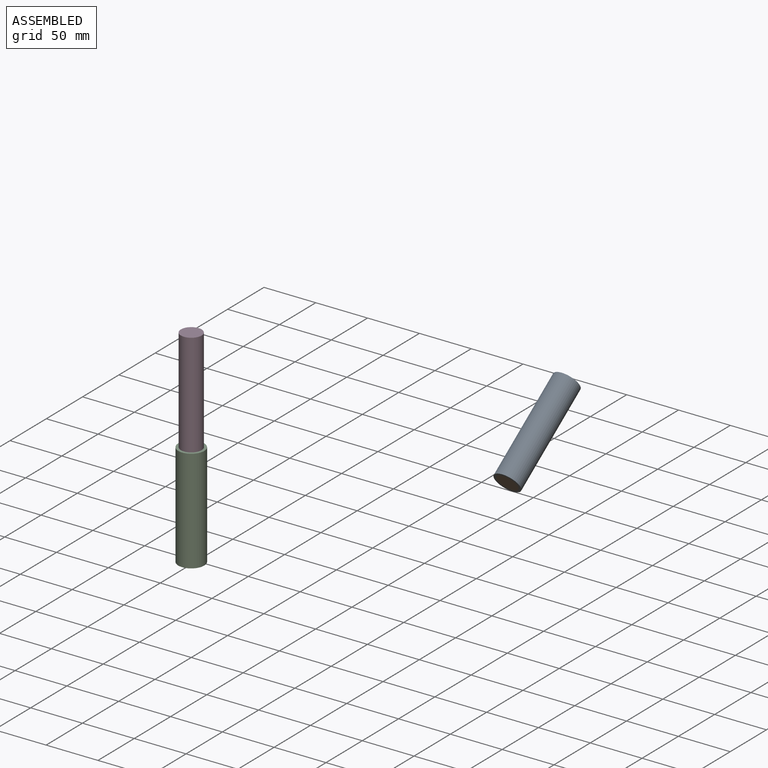
[diagram: assembled view]
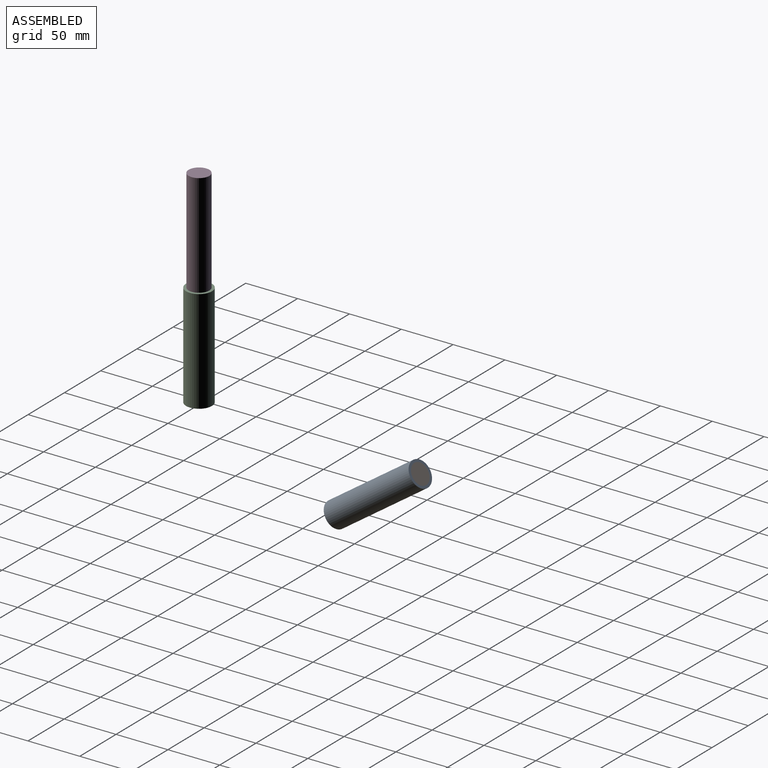
[diagram: assembled view, second angle]
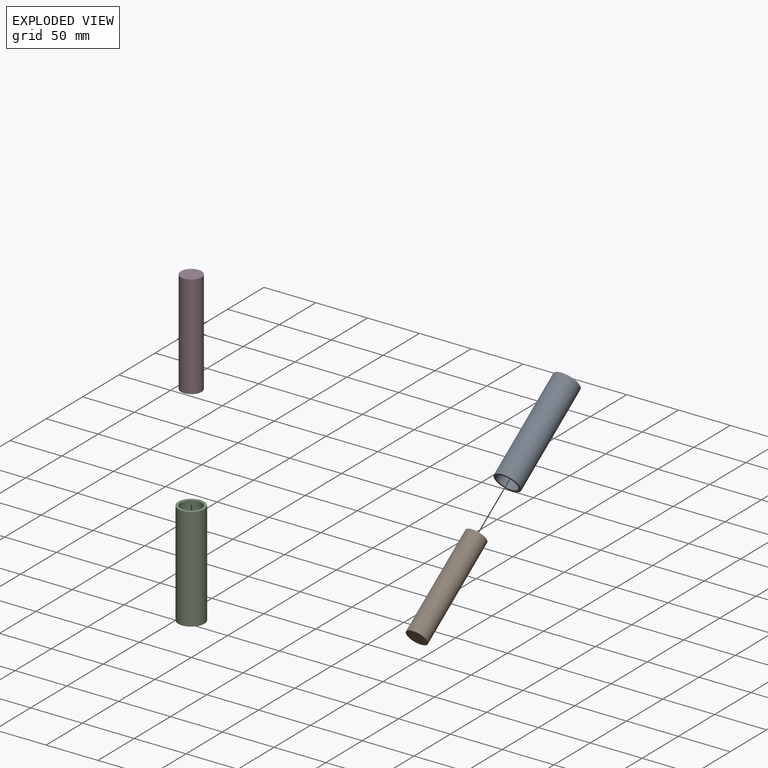
[diagram: exploded view]
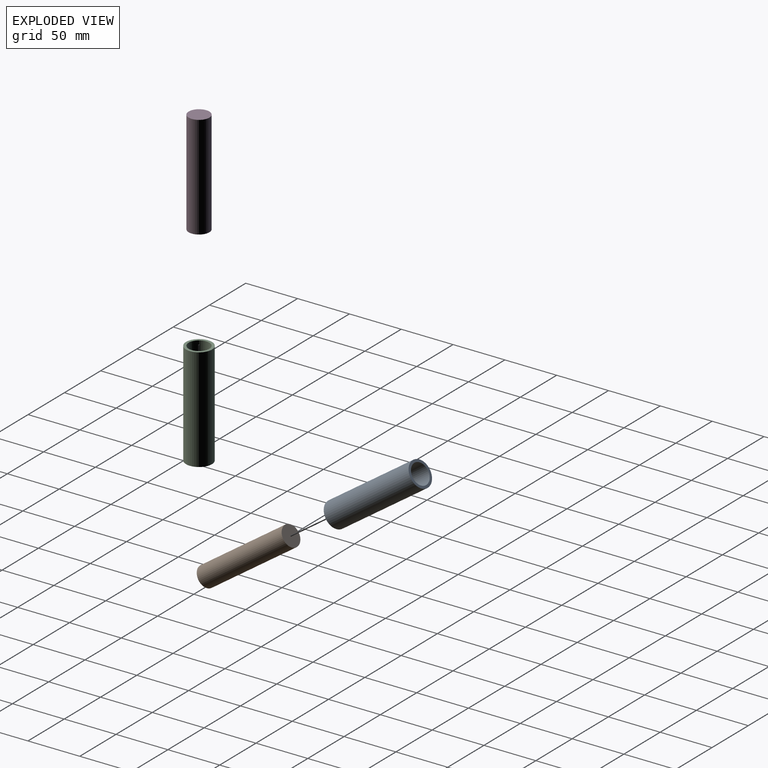
[diagram: exploded view, second angle]
ASSEMBLY  parts=4 mates=2
PART A: 4 faces, bbox 25x25x100 mm
  f0: cylinder r=10mm len=100mm, axis (0,0,-1), area 6283.2mm2, adj f2,f3
  f1: cylinder r=12.5mm len=100mm, axis (0,0,-1), area 7854mm2, adj f2,f3
  f2: plane 25x25mm, normal (0,0,1), area 176.7mm2, adj f0,f1
  f3: plane 25x25mm, normal (0,0,-1), area 176.7mm2, adj f0,f1
PART B: 3 faces, bbox 20x20x100 mm
  f0: cylinder r=10mm len=100mm, axis (0,0,-1), area 6283.2mm2, adj f1,f2
  f1: plane 20x20mm, normal (0,0,1), area 314.2mm2, adj f0
  f2: plane 20x20mm, normal (0,0,-1), area 314.2mm2, adj f0
PART C: same geometry as A
PART D: same geometry as B
PLACE A rot(axis=(-1,0,0),55deg) t=(142.86,231.67,55.47)mm fixed
PLACE B rot(axis=(-1,0,0),55deg) t=(142.86,231.67,55.47)mm
PLACE C t=(0,0,37)mm fixed
PLACE D t=(0,0,137)mm
MATE slider D.f0 <-> C.f0  axis (0,0,1) through (0,0,237)mm
MATE slider B.f0 <-> A.f0  axis (0,0.82,0.57) through (142.86,313.58,112.82)mm
